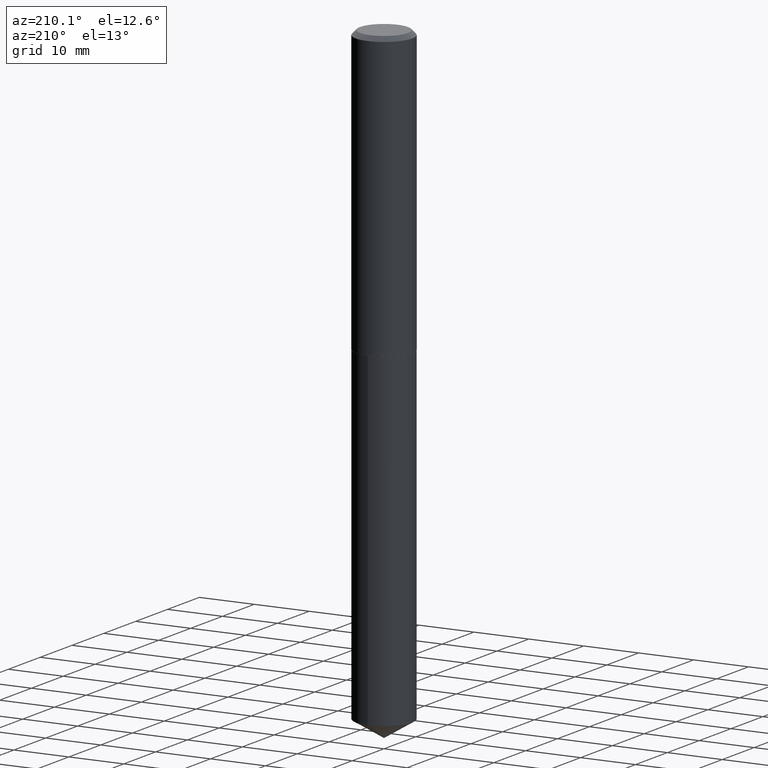
[diagram: clean part render]
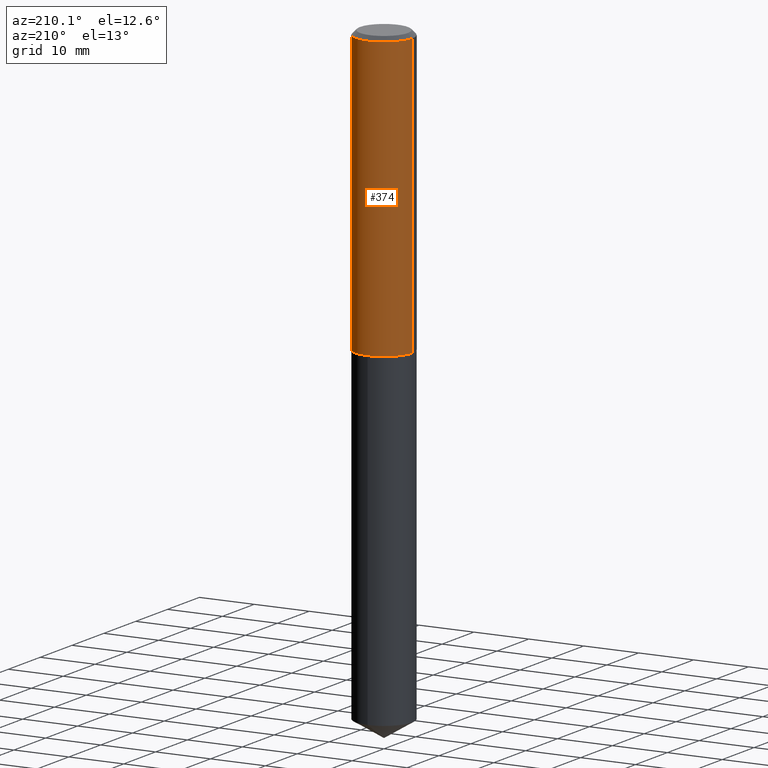
[diagram: same view with one face highlighted and labeled with its STEP entity id]
A machine part, auxiliary view. The second image highlights one B-rep face of the part: STEP entity #374.
In plain terms, the highlighted cylindrical surface (edge-blend (fillet) strip) has radius 5.1587 mm, axis along (-0, 0, 1).
Its self-contained STEP definition (entity closure, byte-faithful):
#3 = EDGE_CURVE ( 'NONE', #246, #102, #108, .T. ) ;
#13 = DIRECTION ( 'NONE',  ( -2.445468806185136597E-29, 3.491481338843145583E-15, 1.000000000000000000 ) ) ;
#34 = AXIS2_PLACEMENT_3D ( 'NONE', #91, #389, #88 ) ;
#36 = DIRECTION ( 'NONE',  ( 1.000000000000000000, -6.982962677686266711E-15, 4.876176775795936353E-29 ) ) ;
#60 = CARTESIAN_POINT ( 'NONE',  ( -0.2031000000000002526, -5.647038858460012326E-15, -2.030700000000000394 ) ) ;
#67 = CARTESIAN_POINT ( 'NONE',  ( -0.2031000000000000028, -2.156517676985048373E-15, -0.03125000000000020123 ) ) ;
#71 = DIRECTION ( 'NONE',  ( -2.445468806185136597E-29, 3.491481338843145583E-15, 1.000000000000000000 ) ) ;
#88 = DIRECTION ( 'NONE',  ( 1.000000000000000000, -6.982962677686266711E-15, 0.000000000000000000 ) ) ;
#91 = CARTESIAN_POINT ( 'NONE',  ( 7.642090019328601786E-31, -1.091087918388490144E-16, -0.03125000000000020123 ) ) ;
#94 = FACE_OUTER_BOUND ( 'NONE', #95, .T. ) ;
#95 = EDGE_LOOP ( 'NONE', ( #189, #304, #156, #264 ) ) ;
#102 = VERTEX_POINT ( 'NONE', #202 ) ;
#108 = LINE ( 'NONE', #261, #159 ) ;
#122 = CIRCLE ( 'NONE', #175, 0.2031000000000002526 ) ;
#124 = VECTOR ( 'NONE', #271, 39.37007874015748143 ) ;
#127 = EDGE_CURVE ( 'NONE', #246, #222, #122, .T. ) ;
#133 = DIRECTION ( 'NONE',  ( 1.000000000000000000, -6.982962677686265922E-15, 0.000000000000000000 ) ) ;
#142 = EDGE_CURVE ( 'NONE', #102, #354, #167, .T. ) ;
#156 = ORIENTED_EDGE ( 'NONE', *, *, #142, .F. ) ;
#159 = VECTOR ( 'NONE', #255, 39.37007874015748143 ) ;
#167 = CIRCLE ( 'NONE', #34, 0.2031000000000000028 ) ;
#175 = AXIS2_PLACEMENT_3D ( 'NONE', #285, #13, #133 ) ;
#181 = CARTESIAN_POINT ( 'NONE',  ( 0.2031000000000002526, -8.508390874626859359E-15, -2.030700000000000394 ) ) ;
#184 = CARTESIAN_POINT ( 'NONE',  ( 0.000000000000000000, 0.000000000000000000, 0.000000000000000000 ) ) ;
#189 = ORIENTED_EDGE ( 'NONE', *, *, #127, .T. ) ;
#202 = CARTESIAN_POINT ( 'NONE',  ( 0.2031000000000000028, -1.527348511676929876E-15, -0.03125000000000020123 ) ) ;
#211 = LINE ( 'NONE', #270, #124 ) ;
#214 = EDGE_CURVE ( 'NONE', #222, #354, #211, .T. ) ;
#215 = AXIS2_PLACEMENT_3D ( 'NONE', #184, #71, #36 ) ;
#222 = VERTEX_POINT ( 'NONE', #60 ) ;
#246 = VERTEX_POINT ( 'NONE', #181 ) ;
#255 = DIRECTION ( 'NONE',  ( -2.445468806185136877E-29, 3.491481338843145188E-15, 1.000000000000000000 ) ) ;
#261 = CARTESIAN_POINT ( 'NONE',  ( 0.2031000000000001415, -1.418239719838081761E-15, 9.903515031641553151E-30 ) ) ;
#264 = ORIENTED_EDGE ( 'NONE', *, *, #3, .F. ) ;
#270 = CARTESIAN_POINT ( 'NONE',  ( -0.2031000000000001415, 1.443112296328764483E-15, -9.990357168307721209E-30 ) ) ;
#271 = DIRECTION ( 'NONE',  ( -2.445468806185136877E-29, 3.491481338843145188E-15, 1.000000000000000000 ) ) ;
#275 = CYLINDRICAL_SURFACE ( 'NONE', #215, 0.2031000000000001415 ) ;
#285 = CARTESIAN_POINT ( 'NONE',  ( 4.966013504720158200E-29, -7.090151154788777795E-15, -2.030700000000000394 ) ) ;
#304 = ORIENTED_EDGE ( 'NONE', *, *, #214, .T. ) ;
#354 = VERTEX_POINT ( 'NONE', #67 ) ;
#374 = ADVANCED_FACE ( 'NONE', ( #94 ), #275, .T. ) ;
#389 = DIRECTION ( 'NONE',  ( -2.445468806185136597E-29, 3.491481338843145583E-15, 1.000000000000000000 ) ) ;